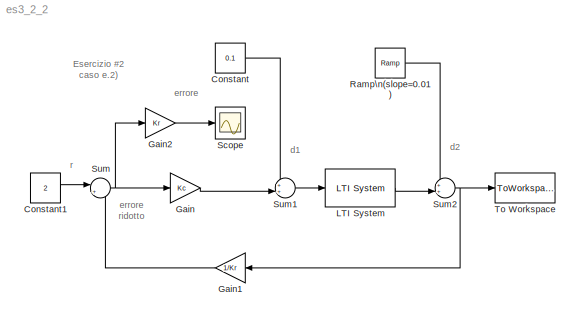
MODEL es3_2_2
KIND model
BLOCK [Constant] Constant
  Value = 0.1
BLOCK [Constant] Constant1
  Value = 2
BLOCK [Gain] Gain
  Gain = Kc
BLOCK [Gain] Gain1
  Gain = 1/Kr
BLOCK [Gain] Gain2
  Gain = Kr
BLOCK [Reference] LTI System  REF=cstblocks/LTI System
  FunctionWithSeparateData = off
  IC = []
  Ports = [1, 1]
  RTWMemSecDataConstants = Inherit from model
  RTWMemSecDataInternal = Inherit from model
  RTWMemSecDataParameters = Inherit from model
  RTWMemSecFuncExecute = Inherit from model
  RTWMemSecFuncInitTerm = Inherit from model
  ShowPortLabels = FromPortIcon
  SourceBlock = cstblocks/LTI System
  SourceType = LTI Block
  SystemSampleTime = -1
  sys = F
BLOCK [Reference] Ramp\n(slope=0.01)  REF=simulink/Sources/Ramp
  FunctionWithSeparateData = off
  Ports = [0, 1]
  RTWMemSecDataConstants = Inherit from model
  RTWMemSecDataInternal = Inherit from model
  RTWMemSecDataParameters = Inherit from model
  RTWMemSecFuncExecute = Inherit from model
  RTWMemSecFuncInitTerm = Inherit from model
  ShowPortLabels = FromPortIcon
  SourceBlock = simulink/Sources/Ramp
  SourceType = Ramp
  SystemSampleTime = -1
  VectorParams1D = on
  X0 = 0
  slope = 0.01
  start = 0
BLOCK [Scope] Scope
  DataFormat = StructureWithTime
  Floating = off
  NumInputPorts = 1
  Ports = [1]
  SampleTime = 0
BLOCK [Sum] Sum
  IconShape = round
  Inputs = |+-
  Ports = [2, 1]
BLOCK [Sum] Sum1
  IconShape = round
  Inputs = ++|
  Ports = [2, 1]
BLOCK [Sum] Sum2
  IconShape = round
  Inputs = ++|
  Ports = [2, 1]
BLOCK [ToWorkspace] To Workspace
  MaxDataPoints = inf
  SampleTime = -1
  SaveFormat = Array
  VariableName = y
ANNOTATION (root): Esercizio #2\ncaso e.2)
ANNOTATION (root): d1
ANNOTATION (root): d2
ANNOTATION (root): errore
ANNOTATION (root): errore\nridotto
ANNOTATION (root): r
LINE Constant1:1 -> Sum:1
LINE Constant:1 -> Sum1:1
LINE Gain1:1 -> Sum:2
LINE Gain2:1 -> Scope:1
LINE Gain:1 -> Sum1:2
LINE LTI System:1 -> Sum2:2
LINE Ramp\n(slope=0.01):1 -> Sum2:1
LINE Sum1:1 -> LTI System:1
NET Sum2:1 -> Gain1:1, To Workspace:1
NET Sum:1 -> Gain2:1, Gain:1
note: NET lines group one-source signal fan-out (src -> all destinations, sorted); 1:1 wires keep LINE
